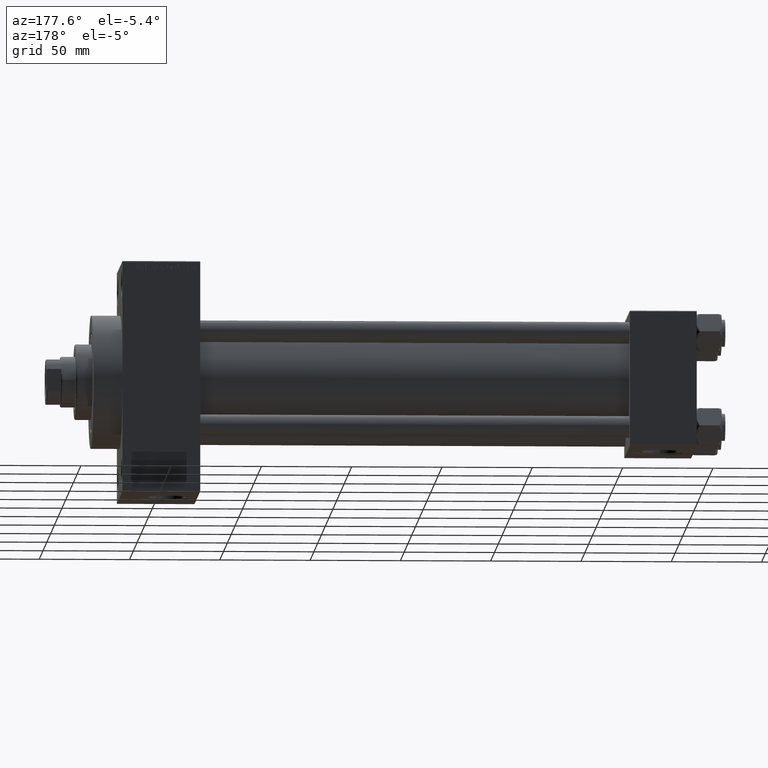
[diagram: clean part render]
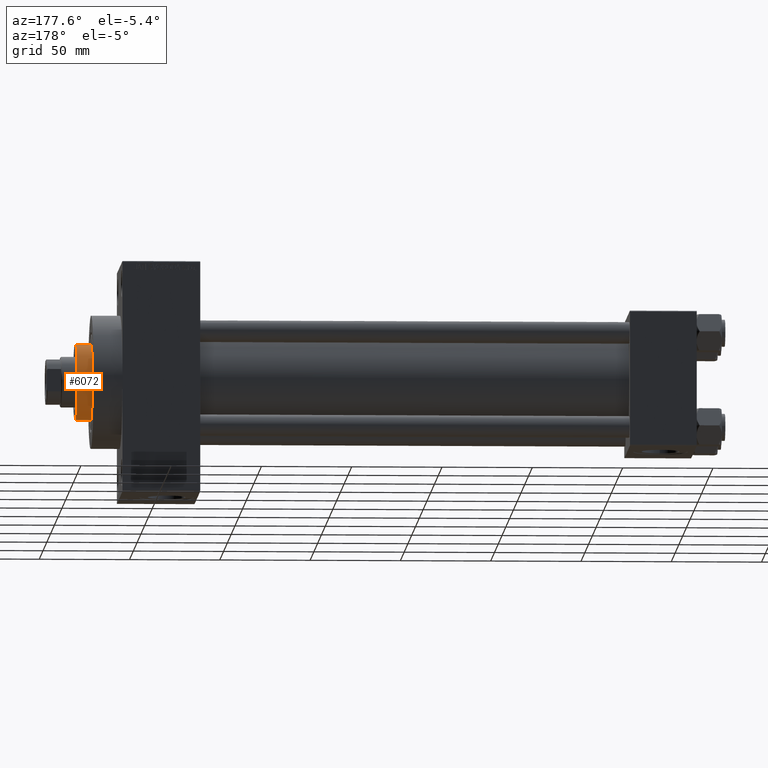
[diagram: same view with one face highlighted and labeled with its STEP entity id]
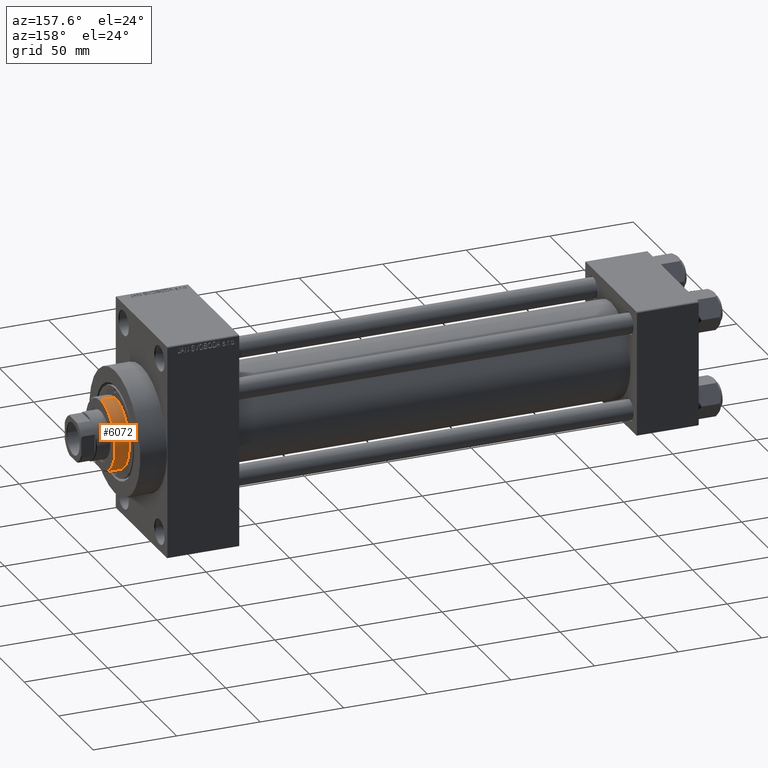
[diagram: same view with one face highlighted and labeled with its STEP entity id]
A machine part, auxiliary view. The second image highlights one B-rep face of the part: STEP entity #6072.
A second angle (auxiliary view) of the same face is appended — the face is thin or edge-on in the first view.
In plain terms, the highlighted cylindrical surface (partial cylindrical patch) has radius 21 mm, axis along (-1, 0, 0).
Its self-contained STEP definition (entity closure, byte-faithful):
#56 = LINE ( 'NONE', #50533, #19063 ) ;
#304 = DIRECTION ( 'NONE',  ( -0.000000000000000000, -0.000000000000000000, -1.000000000000000000 ) ) ;
#840 = LINE ( 'NONE', #16968, #20590 ) ;
#1688 = EDGE_CURVE ( 'NONE', #26928, #48447, #39987, .T. ) ;
#3356 = ORIENTED_EDGE ( 'NONE', *, *, #1688, .T. ) ;
#6072 = ADVANCED_FACE ( 'NONE', ( #18274 ), #49562, .T. ) ;
#10127 = CARTESIAN_POINT ( 'NONE',  ( 21.00000000000000000, 2.571758278209441661E-15, 43.25999999999999801 ) ) ;
#10571 = DIRECTION ( 'NONE',  ( -0.000000000000000000, -0.000000000000000000, -1.000000000000000000 ) ) ;
#10981 = EDGE_CURVE ( 'NONE', #21973, #48447, #840, .T. ) ;
#11371 = CARTESIAN_POINT ( 'NONE',  ( 21.00000000000000000, 2.571758278209441661E-15, 51.75999999999999801 ) ) ;
#15427 = DIRECTION ( 'NONE',  ( 0.000000000000000000, 0.000000000000000000, -1.000000000000000000 ) ) ;
#16968 = CARTESIAN_POINT ( 'NONE',  ( 21.00000000000000000, 2.571758278209441661E-15, 52.25999999999999801 ) ) ;
#17967 = AXIS2_PLACEMENT_3D ( 'NONE', #37231, #10571, #44940 ) ;
#18274 = FACE_OUTER_BOUND ( 'NONE', #33867, .T. ) ;
#18544 = CARTESIAN_POINT ( 'NONE',  ( -21.00000000000000000, 0.000000000000000000, 43.25999999999999801 ) ) ;
#19063 = VECTOR ( 'NONE', #304, 1000.000000000000000 ) ;
#20590 = VECTOR ( 'NONE', #24634, 1000.000000000000000 ) ;
#21973 = VERTEX_POINT ( 'NONE', #11371 ) ;
#22086 = ORIENTED_EDGE ( 'NONE', *, *, #47050, .T. ) ;
#22376 = AXIS2_PLACEMENT_3D ( 'NONE', #30790, #15427, #31043 ) ;
#23887 = ORIENTED_EDGE ( 'NONE', *, *, #48964, .T. ) ;
#24634 = DIRECTION ( 'NONE',  ( -0.000000000000000000, -0.000000000000000000, -1.000000000000000000 ) ) ;
#26928 = VERTEX_POINT ( 'NONE', #18544 ) ;
#28897 = VERTEX_POINT ( 'NONE', #40222 ) ;
#29147 = DIRECTION ( 'NONE',  ( 1.000000000000000000, 0.000000000000000000, 0.000000000000000000 ) ) ;
#29394 = DIRECTION ( 'NONE',  ( 0.000000000000000000, 0.000000000000000000, 1.000000000000000000 ) ) ;
#30312 = ORIENTED_EDGE ( 'NONE', *, *, #10981, .F. ) ;
#30790 = CARTESIAN_POINT ( 'NONE',  ( 0.000000000000000000, 0.000000000000000000, 51.75999999999999801 ) ) ;
#31043 = DIRECTION ( 'NONE',  ( 1.000000000000000000, 0.000000000000000000, 0.000000000000000000 ) ) ;
#32205 = CIRCLE ( 'NONE', #22376, 21.00000000000000000 ) ;
#32996 = CARTESIAN_POINT ( 'NONE',  ( 0.000000000000000000, 0.000000000000000000, 43.25999999999999801 ) ) ;
#33867 = EDGE_LOOP ( 'NONE', ( #30312, #23887, #22086, #3356 ) ) ;
#37231 = CARTESIAN_POINT ( 'NONE',  ( 0.000000000000000000, 0.000000000000000000, 52.25999999999999801 ) ) ;
#39987 = CIRCLE ( 'NONE', #42447, 21.00000000000000000 ) ;
#40222 = CARTESIAN_POINT ( 'NONE',  ( -21.00000000000000000, 0.000000000000000000, 51.75999999999999801 ) ) ;
#42447 = AXIS2_PLACEMENT_3D ( 'NONE', #32996, #29394, #29147 ) ;
#44940 = DIRECTION ( 'NONE',  ( -1.000000000000000000, 0.000000000000000000, 0.000000000000000000 ) ) ;
#47050 = EDGE_CURVE ( 'NONE', #28897, #26928, #56, .T. ) ;
#48447 = VERTEX_POINT ( 'NONE', #10127 ) ;
#48964 = EDGE_CURVE ( 'NONE', #21973, #28897, #32205, .T. ) ;
#49562 = CYLINDRICAL_SURFACE ( 'NONE', #17967, 21.00000000000000000 ) ;
#50533 = CARTESIAN_POINT ( 'NONE',  ( -21.00000000000000000, 0.000000000000000000, 52.25999999999999801 ) ) ;